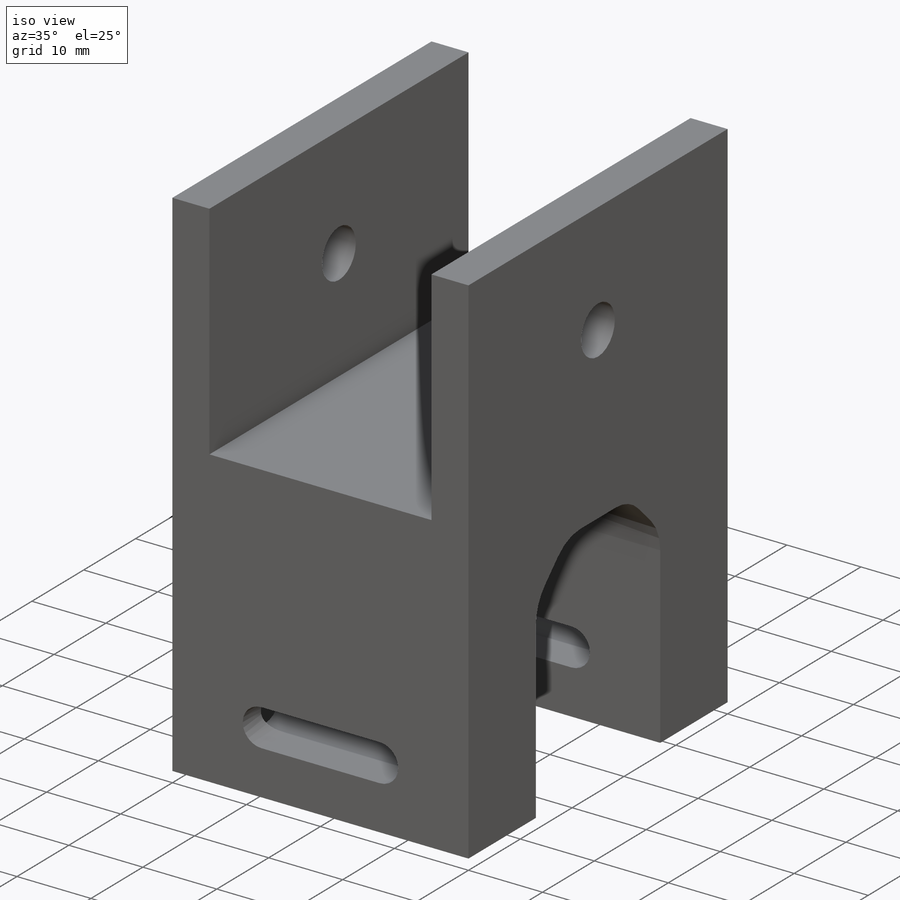
[diagram: iso view]
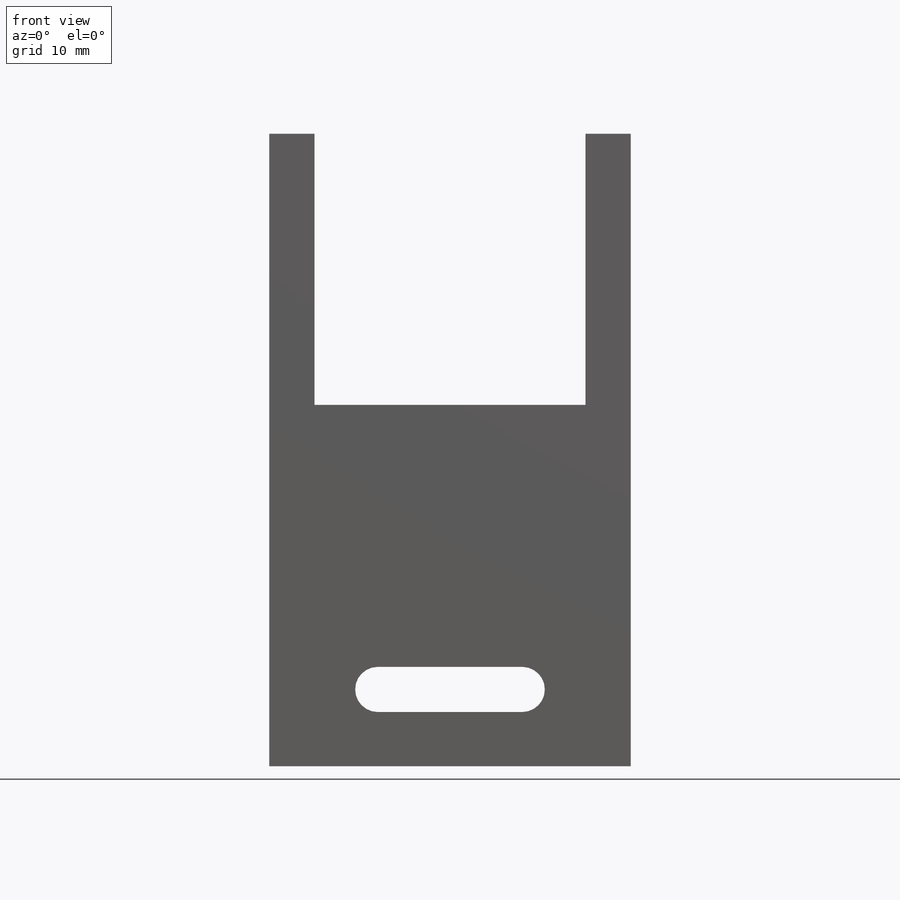
[diagram: front view]
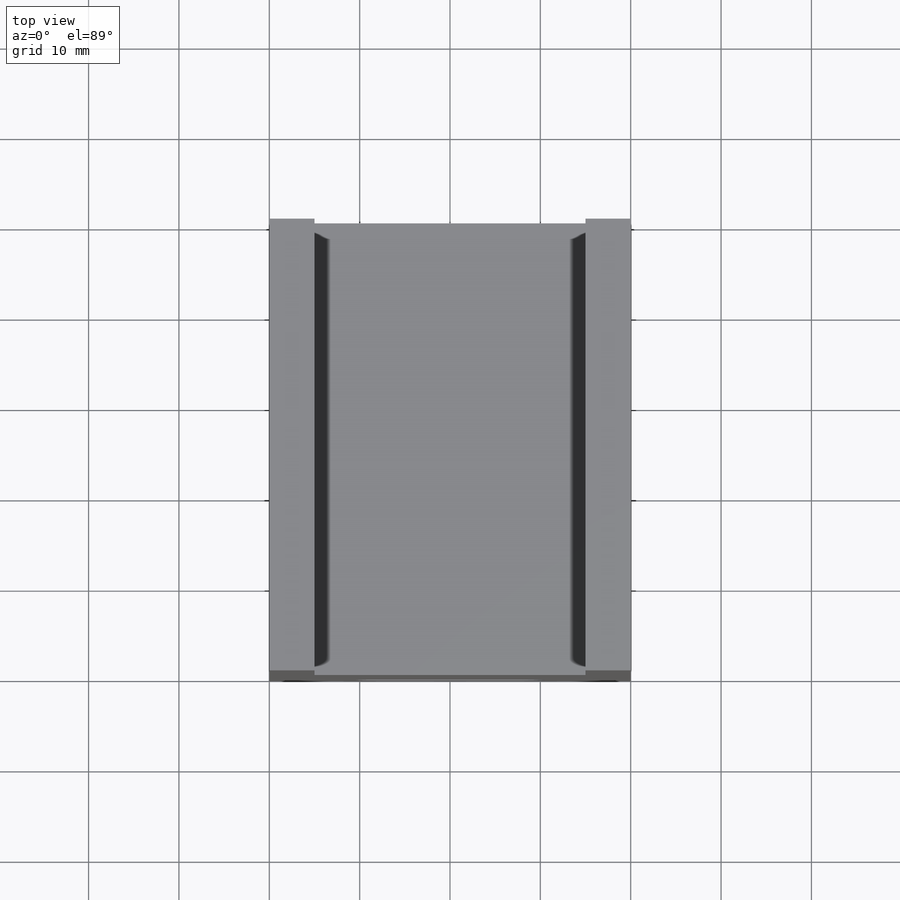
[diagram: top view]
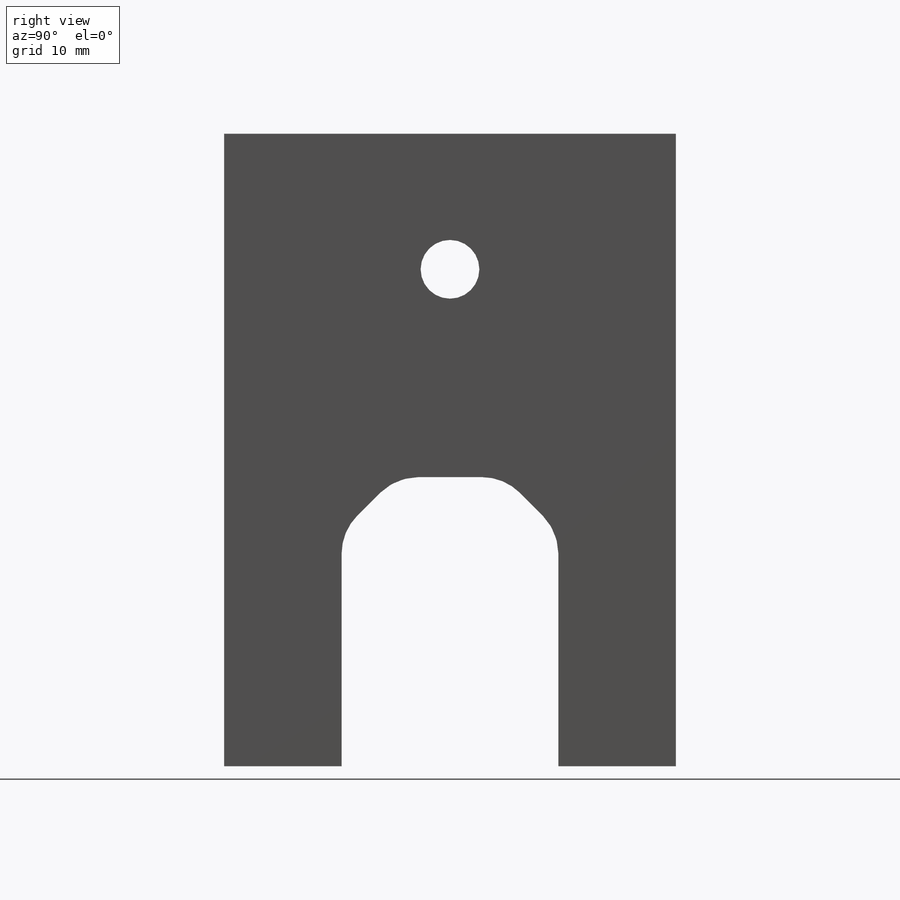
[diagram: right view]
SOLIDWORKS PART (.sldprt)
format: sldprt  version: not decoded by parser v0  size: 378,880 bytes
history: native  units: mm
features: sketch x7, cut_extrude x6, chamfer x2, fillet x2, material x1, extrude x1 (+12 scaffold rows collapsed)
feature tree (31):
  scaffold x12  (default folders/planes/origin — collapsed)
  material  "ABS PC"
  sketch  "Sketch1"  dims[D1=50.0mm D2=40.0mm]
  extrude  "Boss-Extrude1"  Depth=70mm
  sketch  "Sketch2"  dims[D1=30.0mm D2=30.0mm D3=5.0mm]
  cut_extrude  "Cut-Extrude1"  [1 undecoded]
  sketch  "Sketch3"  dims[c1.D4=5.5mm c1.D5=~4.440991mm c1.D6=5.5mm c1.D1=13.0mm c1.D2=13.0mm c1.D3=8.0mm c2.D5=6.5mm c2.D6=6.5mm]
  cut_extrude  "Cut-Extrude2"  [1 undecoded]
  sketch  "Sketch5"  dims[c1.D1=6.0mm c1.D2=6.0mm c1.D3=6.0mm c2.D2=6.5mm c2.D3=6.5mm c2.D4=8.5mm]
  sketch  "Sketch8"  dims[c1.D1=6.5mm c1.D2=6.5mm c1.D3=6.5mm c2.D2=15.0mm]
  cut_extrude  "Cut-Extrude6"  [1 undecoded]
  cut_extrude  "Cut-Extrude7"  Depth=4mm
  sketch  "Sketch9"  dims[D1=8.0mm D2=4.0mm D3=4.0mm D4=2.5mm D5=2.5mm]
  cut_extrude  "Cut-Extrude8"  Depth=18mm
  sketch  "Sketch10"  dims[D1=5.0mm D2=4.0mm D3=12.0mm D4=8.5mm]
  cut_extrude  "Cut-Extrude9"  [1 undecoded]
  chamfer  "Chamfer2"  Distance=10mm Angle=65deg
  fillet  "Fillet3"  Radius=40mm
  chamfer  "Chamfer4"  Distance=6mm Angle=45deg
  fillet  "Fillet4"  Radius=6mm
decode coverage: 14 of 18 modeling features carry decoded parameters
note: ~ marks probable driven/reference dimensions
note: 4 parameter values undecoded
summary: no parameter record found for 4 features
note: suppression state not decoded; provenance and decode notes live in map.json
